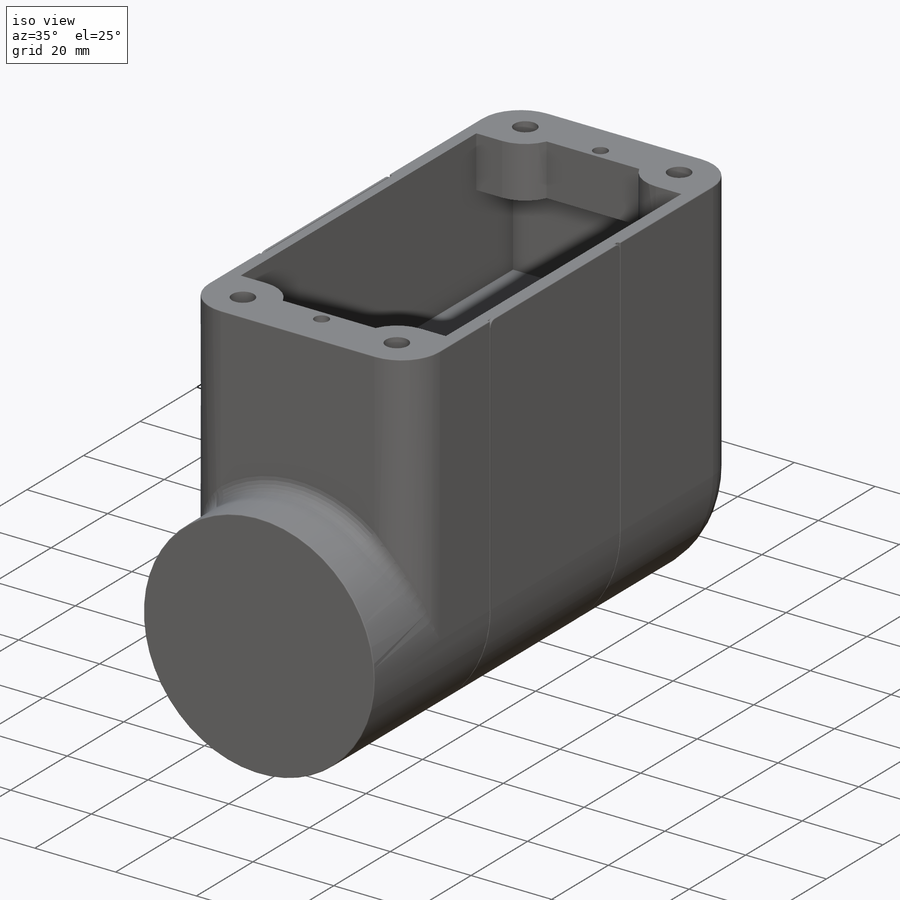
[diagram: iso view]
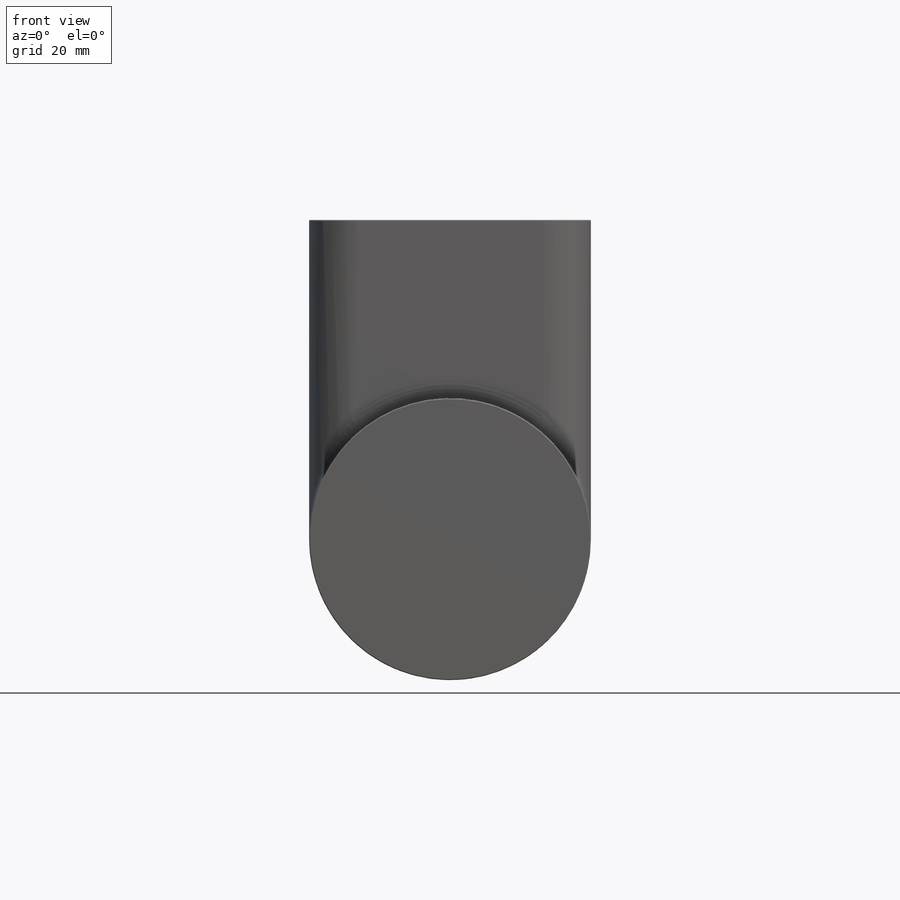
[diagram: front view]
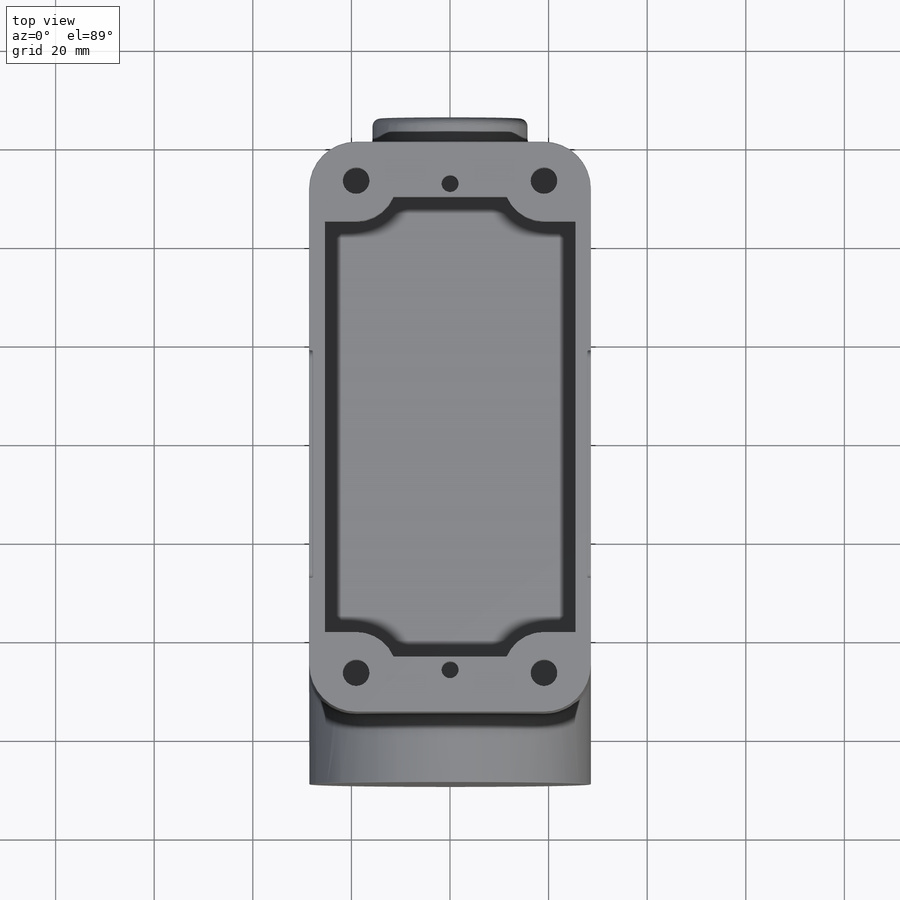
[diagram: top view]
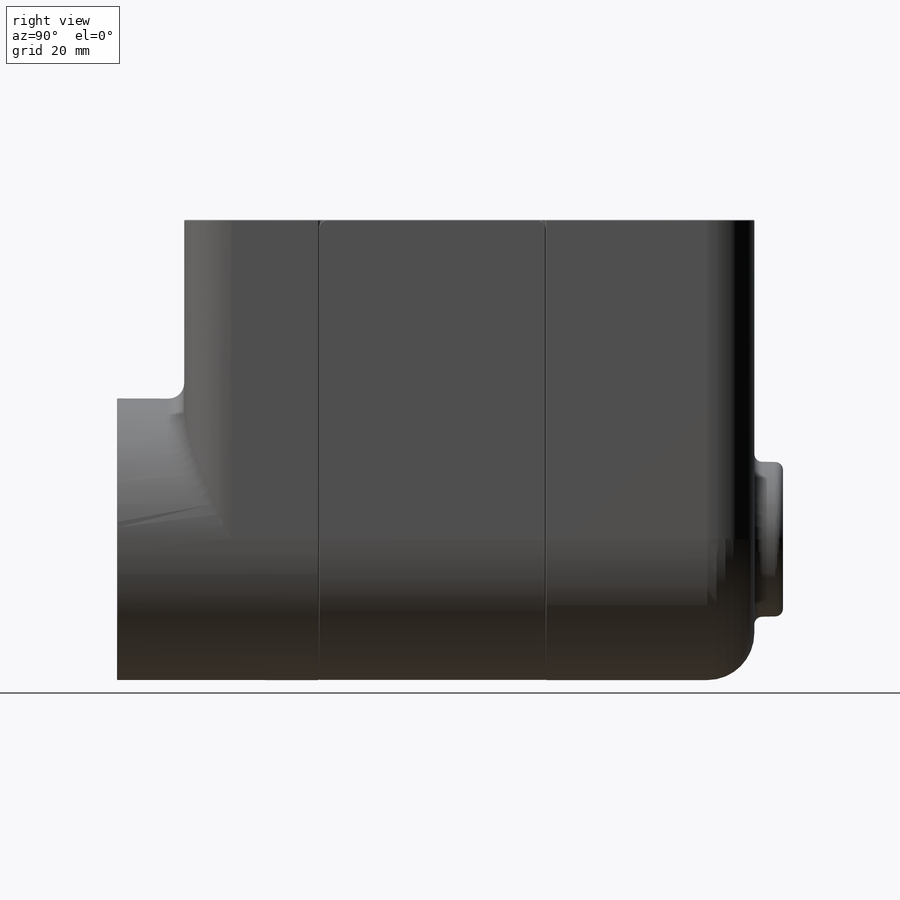
[diagram: right view]
SOLIDWORKS PART (.sldprt)
format: sldprt  version: not decoded by parser v0  size: 777,216 bytes
history: native  units: mm
features: sketch x12, fillet x10, extrude x4, cut_extrude x4, plane x2, hole x2, material x1 (+16 scaffold rows collapsed)
feature tree (51):
  scaffold x16  (default folders/planes/origin — collapsed)
  material  "Material <not specified>"
  sketch  "Sketch1"  dims[D1=57.15mm]
  extrude  "Extrude1"  Depth=129.286mm
  sketch  "Sketch2"  dims[D1=36.195mm]
  extrude  "Extrude2"  Depth=13.6398mm
  sketch  "Sketch3"  dims[D1=31.4452mm D2=21.3741mm]
  extrude  "Extrude3"  Depth=5.8166mm
  sketch  "Sketch4"  dims[D1=0.0mm]
  cut_extrude  "Extrude4"  Depth=11.1252mm
  plane  "Plane1"  Offset=35.4584mm
  sketch  "Sketch6"  dims[c1.D9=16.51mm c1.D1=7.8994mm c1.D2=7.8994mm c1.D3=11.176mm c1.D4=11.176mm c1.D5=3.175mm c1.D6=3.175mm c1.D7=19.05mm c1.D8=19.05mm c2.D3=8.509mm c2.D4=8.509mm]
  cut_extrude  "Extrude5"  Depth=12.7mm
  sketch  "Sketch7"  dims[D1=3.175mm D2=3.175mm]
  cut_extrude  "Extrude6"  [1 undecoded]
  plane  "Plane2"  Offset=27.305mm
  sketch  "Sketch8"  dims[D1=0.6731mm]
  cut_extrude  "Extrude7"  Depth=45.9994mm
  sketch  "Sketch10"  dims[D1=0.0mm]
  extrude  "Extrude8"  [1 undecoded]
  hole  "1/4-28 Tapped Hole1"  Diameter=5.4102mm Depth=12.7mm
  sketch  "3DSketch1"
  sketch  "Sketch11"  dims[hole-wizard template sketch: 59 standard entries collapsed; hole parameters kept: c18.Thread Major Dia.=5.4102mm c18.Thru Tap Drill Depth=12.7mm]
  hole  "#8-32 Tapped Hole1"  Diameter=3.4544mm Depth=12.7mm
  sketch  "3DSketch3"
  sketch  "Sketch14"  dims[hole-wizard template sketch: 47 standard entries collapsed; hole parameters kept: c15.Tap Drill Depth=12.7mm c15.D3=~14.816244mm c15.Drill Angle=118.0deg]
  fillet  "Fillet1"  Radius=9.525mm
  fillet  "Fillet2"  Radius=3.175mm
  fillet  "Fillet3"  Radius=1.5875mm
  fillet  "Fillet4"  Radius=1.5875mm
  fillet  "Fillet5"  Radius=0.79375mm
  fillet  "Fillet6"  Radius=0.198437mm
  fillet  "Fillet7"  Radius=1.5875mm
  fillet  "Fillet8"  Radius=0.198437mm
  fillet  "Fillet9"  Radius=0.198437mm
  fillet  "Fillet10"  Radius=0.198437mm
decode coverage: 28 of 32 modeling features carry decoded parameters
note: ~ marks probable driven/reference dimensions
note: 2 parameter values undecoded
note: suppression state not decoded; provenance and decode notes live in map.json
